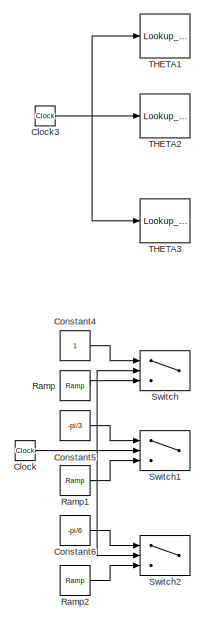
[diagram: root canvas - part 1/3, middle left region]
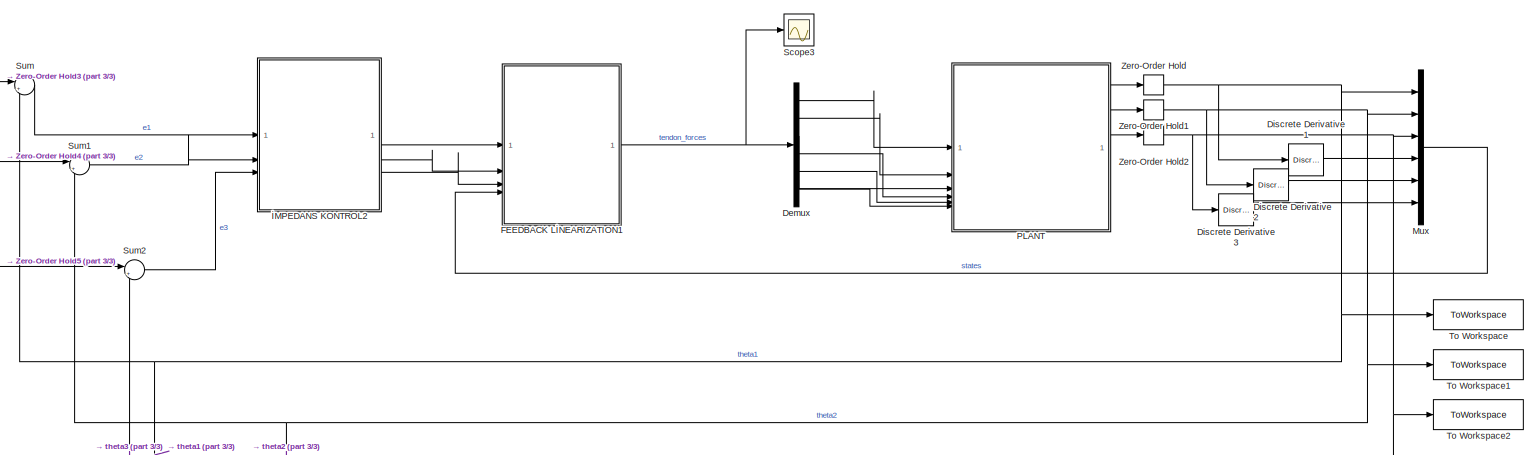
[diagram: root canvas - part 2/3, central region]
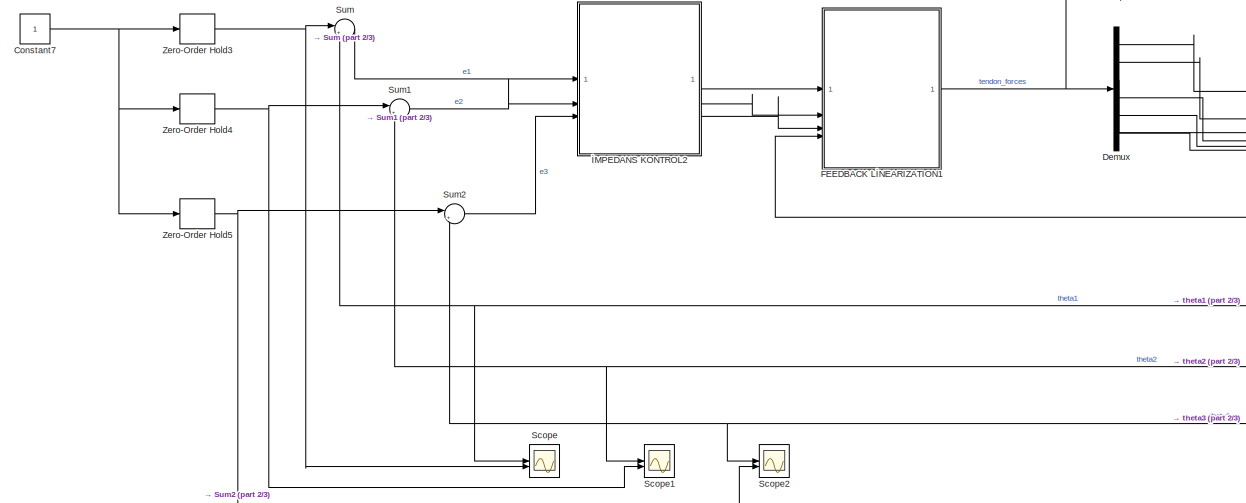
[diagram: root canvas - part 3/3, bottom center region]
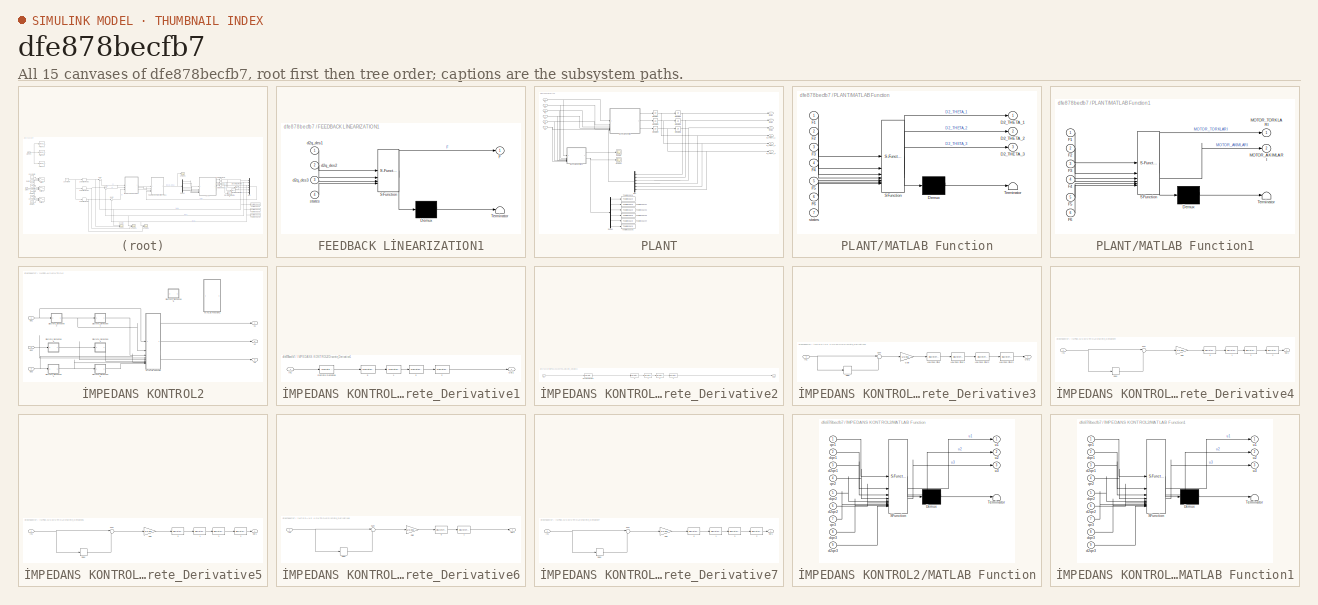
[diagram: thumbnail index - all 15 canvases of the model, root first then tree order]
MODEL slx_dfe878becfb7
KIND model
CONFIG AbsTol = auto
CONFIG EnableMultiTasking = off
CONFIG FixedStep = 0.001
CONFIG MaxStep = auto
CONFIG MinStep = auto
CONFIG RelTol = 1e-3
CONFIG SampleTimeConstraint = Unconstrained
CONFIG SolverName = FixedStepAuto
CONFIG StartTime = 0.0
CONFIG StopTime = 10
BLOCK [Clock] Clock
BLOCK [Clock] Clock3
BLOCK [Constant] Constant4
BLOCK [Constant] Constant5
  Value = -pi/3
BLOCK [Constant] Constant6
  Value = -pi/6
BLOCK [Constant] Constant7
  SampleTime = 0.001
BLOCK [Demux] Demux
  Outputs = 6
BLOCK [Reference] Discrete Derivative1  REF=simulink/Discrete/Discrete Derivative
  SourceBlock = simulink/Discrete/Discrete Derivative
  SourceType = Discrete Derivative
BLOCK [Reference] Discrete Derivative2  REF=simulink/Discrete/Discrete Derivative
  SourceBlock = simulink/Discrete/Discrete Derivative
  SourceType = Discrete Derivative
BLOCK [Reference] Discrete Derivative3  REF=simulink/Discrete/Discrete Derivative
  SourceBlock = simulink/Discrete/Discrete Derivative
  SourceType = Discrete Derivative
BLOCK [SubSystem] FEEDBACK LİNEARIZATION1
  ErrorFcn = Stateflow.Translate.translate
  PermitHierarchicalResolution = ExplicitOnly
  SFBlockType = MATLAB Function
  TreatAsAtomicUnit = on
BLOCK [Demux] FEEDBACK LİNEARIZATION1/ Demux 
  Outputs = 1
BLOCK [S-Function] FEEDBACK LİNEARIZATION1/ SFunction 
  EnableBusSupport = on
  FunctionName = sf_sfun
  PortCounts = [4 2]
  SFcnIsStateOwnerBlock = off
  SFunctionDeploymentMode = off
  Tag = Stateflow S-Function 3
BLOCK [Terminator] FEEDBACK LİNEARIZATION1/ Terminator 
BLOCK [Outport] FEEDBACK LİNEARIZATION1/F
BLOCK [Inport] FEEDBACK LİNEARIZATION1/d2q_des1
BLOCK [Inport] FEEDBACK LİNEARIZATION1/d2q_des2
  Port = 2
BLOCK [Inport] FEEDBACK LİNEARIZATION1/d2q_des3
  Port = 3
BLOCK [Inport] FEEDBACK LİNEARIZATION1/states
  Port = 4
BLOCK [Mux] Mux
  DisplayOption = bar
  Inputs = 6
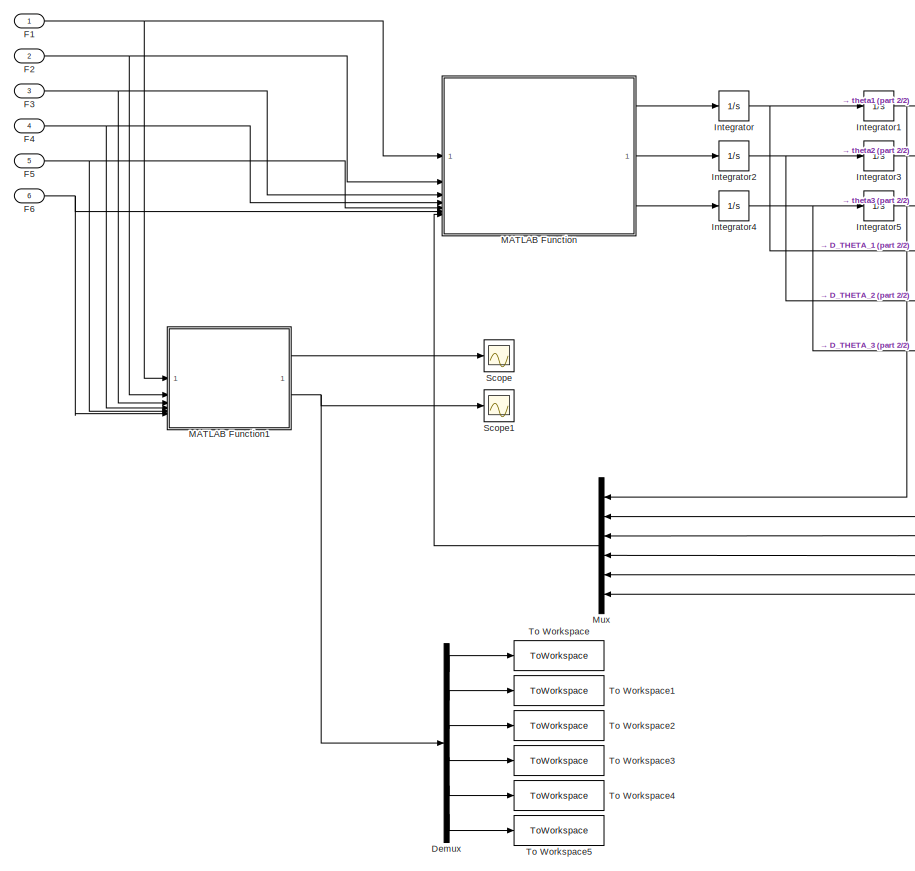
[diagram: PLANT - part 1/2, left side, full height]
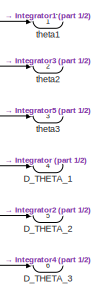
[diagram: PLANT - part 2/2, top right region]
BLOCK [SubSystem] PLANT
BLOCK [Outport] PLANT/D_THETA_1
  Port = 4
BLOCK [Outport] PLANT/D_THETA_2
  Port = 5
BLOCK [Outport] PLANT/D_THETA_3
  Port = 6
BLOCK [Demux] PLANT/Demux
  Outputs = 6
BLOCK [Inport] PLANT/F1
BLOCK [Inport] PLANT/F2
  Port = 2
BLOCK [Inport] PLANT/F3
  Port = 3
BLOCK [Inport] PLANT/F4
  Port = 4
BLOCK [Inport] PLANT/F5
  Port = 5
BLOCK [Inport] PLANT/F6
  Port = 6
BLOCK [Integrator] PLANT/Integrator
BLOCK [Integrator] PLANT/Integrator1
BLOCK [Integrator] PLANT/Integrator2
BLOCK [Integrator] PLANT/Integrator3
BLOCK [Integrator] PLANT/Integrator4
BLOCK [Integrator] PLANT/Integrator5
BLOCK [SubSystem] PLANT/MATLAB Function
  ErrorFcn = Stateflow.Translate.translate
  PermitHierarchicalResolution = ExplicitOnly
  SFBlockType = MATLAB Function
  TreatAsAtomicUnit = on
BLOCK [Demux] PLANT/MATLAB Function/ Demux 
  Outputs = 1
BLOCK [S-Function] PLANT/MATLAB Function/ SFunction 
  EnableBusSupport = on
  FunctionName = sf_sfun
  PortCounts = [7 4]
  SFcnIsStateOwnerBlock = off
  SFunctionDeploymentMode = off
  Tag = Stateflow S-Function 2
BLOCK [Terminator] PLANT/MATLAB Function/ Terminator 
BLOCK [Outport] PLANT/MATLAB Function/D2_THETA_1
BLOCK [Outport] PLANT/MATLAB Function/D2_THETA_2
  Port = 2
BLOCK [Outport] PLANT/MATLAB Function/D2_THETA_3
  Port = 3
BLOCK [Inport] PLANT/MATLAB Function/F1
BLOCK [Inport] PLANT/MATLAB Function/F2
  Port = 2
BLOCK [Inport] PLANT/MATLAB Function/F3
  Port = 3
BLOCK [Inport] PLANT/MATLAB Function/F4
  Port = 4
BLOCK [Inport] PLANT/MATLAB Function/F5
  Port = 5
BLOCK [Inport] PLANT/MATLAB Function/F6
  Port = 6
BLOCK [Inport] PLANT/MATLAB Function/states
  Port = 7
BLOCK [SubSystem] PLANT/MATLAB Function1
  ErrorFcn = Stateflow.Translate.translate
  PermitHierarchicalResolution = ExplicitOnly
  SFBlockType = MATLAB Function
  TreatAsAtomicUnit = on
BLOCK [Demux] PLANT/MATLAB Function1/ Demux 
  Outputs = 1
BLOCK [S-Function] PLANT/MATLAB Function1/ SFunction 
  EnableBusSupport = on
  FunctionName = sf_sfun
  PortCounts = [6 3]
  SFcnIsStateOwnerBlock = off
  SFunctionDeploymentMode = off
  Tag = Stateflow S-Function 1
BLOCK [Terminator] PLANT/MATLAB Function1/ Terminator 
BLOCK [Inport] PLANT/MATLAB Function1/F1
BLOCK [Inport] PLANT/MATLAB Function1/F2
  Port = 2
BLOCK [Inport] PLANT/MATLAB Function1/F3
  Port = 3
BLOCK [Inport] PLANT/MATLAB Function1/F4
  Port = 4
BLOCK [Inport] PLANT/MATLAB Function1/F5
  Port = 5
BLOCK [Inport] PLANT/MATLAB Function1/F6
  Port = 6
BLOCK [Outport] PLANT/MATLAB Function1/MOTOR_AKIMLARI
  Port = 2
BLOCK [Outport] PLANT/MATLAB Function1/MOTOR_TORKLARI
BLOCK [Mux] PLANT/Mux
  DisplayOption = bar
  Inputs = 6
  NameLocation = top
BLOCK [Scope] PLANT/Scope
  Floating = off
  NumInputPorts = 1
  ScopeSpecificationString = Simulink.scopes.TimeScopeBlockCfg('CurrentConfiguration', extmgr.ConfigurationSet(extmgr.Configuration('Core','General UI',true),extmgr.Configuration('Core','Source UI',true),extmgr.Configuration('Sources','WiredSimulink',true,'DataLoggingVariableName','ScopeData1'),extmgr.Configuration('Visuals','Time Domain',true,'SerializedDisplays',{struct('MinYLimReal','-0.0105','MaxYLimReal','0.09573','YLabe...<+1686ch>
BLOCK [Scope] PLANT/Scope1
  Floating = off
  NumInputPorts = 1
  ScopeSpecificationString = Simulink.scopes.TimeScopeBlockCfg('CurrentConfiguration', extmgr.ConfigurationSet(extmgr.Configuration('Core','General UI',true),extmgr.Configuration('Core','Source UI',true),extmgr.Configuration('Sources','WiredSimulink',true,'DataLoggingVariableName','ScopeData2'),extmgr.Configuration('Visuals','Time Domain',true,'SerializedDisplays',{struct('MinYLimReal','-0.01063','MaxYLimReal','0.09566','YLab...<+1732ch>
BLOCK [ToWorkspace] PLANT/To Workspace
  FixptAsFi = on
  MaxDataPoints = inf
  SampleTime = -1
  SaveFormat = Timeseries
  VariableName = m1
BLOCK [ToWorkspace] PLANT/To Workspace1
  FixptAsFi = on
  MaxDataPoints = inf
  SampleTime = -1
  SaveFormat = Timeseries
  VariableName = m2
BLOCK [ToWorkspace] PLANT/To Workspace2
  FixptAsFi = on
  MaxDataPoints = inf
  SampleTime = -1
  SaveFormat = Timeseries
  VariableName = m3
BLOCK [ToWorkspace] PLANT/To Workspace3
  FixptAsFi = on
  MaxDataPoints = inf
  SampleTime = -1
  SaveFormat = Timeseries
  VariableName = m4
BLOCK [ToWorkspace] PLANT/To Workspace4
  FixptAsFi = on
  MaxDataPoints = inf
  SampleTime = -1
  SaveFormat = Timeseries
  VariableName = m5
BLOCK [ToWorkspace] PLANT/To Workspace5
  FixptAsFi = on
  MaxDataPoints = inf
  SampleTime = -1
  SaveFormat = Timeseries
  VariableName = m6
BLOCK [Outport] PLANT/theta1
BLOCK [Outport] PLANT/theta2
  Port = 2
BLOCK [Outport] PLANT/theta3
  Port = 3
BLOCK [Reference] Ramp  REF=simulink/Sources/Ramp
  SourceBlock = simulink/Sources/Ramp
  SourceType = Ramp
BLOCK [Reference] Ramp1  REF=simulink/Sources/Ramp
  SourceBlock = simulink/Sources/Ramp
  SourceType = Ramp
BLOCK [Reference] Ramp2  REF=simulink/Sources/Ramp
  SourceBlock = simulink/Sources/Ramp
  SourceType = Ramp
BLOCK [Scope] Scope
  Floating = off
  NumInputPorts = 2
  ScopeSpecificationString = Simulink.scopes.TimeScopeBlockCfg('CurrentConfiguration', extmgr.ConfigurationSet(extmgr.Configuration('Core','General UI',true,'FigureColor',[0.831372549019608 0.815686274509804 0.784313725490196]),extmgr.Configuration('Core','Source UI',true),extmgr.Configuration('Sources','WiredSimulink',true,'DataLoggingVariableName','ScopeData1'),extmgr.Configuration('Visuals','Time Domain',true,'SerializedDi...<+1827ch>
BLOCK [Scope] Scope1
  Floating = off
  NumInputPorts = 2
  ScopeSpecificationString = Simulink.scopes.TimeScopeBlockCfg('CurrentConfiguration', extmgr.ConfigurationSet(extmgr.Configuration('Core','General UI',true),extmgr.Configuration('Core','Source UI',true),extmgr.Configuration('Sources','WiredSimulink',true,'DataLoggingVariableName','ScopeData2'),extmgr.Configuration('Visuals','Time Domain',true,'SerializedDisplays',{struct('MinYLimReal','-0.15205','MaxYLimReal','1.36845','YLab...<+1525ch>
BLOCK [Scope] Scope2
  Floating = off
  NumInputPorts = 2
  ScopeSpecificationString = Simulink.scopes.TimeScopeBlockCfg('CurrentConfiguration', extmgr.ConfigurationSet(extmgr.Configuration('Core','General UI',true),extmgr.Configuration('Core','Source UI',true),extmgr.Configuration('Sources','WiredSimulink',true,'DataLoggingVariableName','ScopeData3'),extmgr.Configuration('Visuals','Time Domain',true,'SerializedDisplays',{struct('MinYLimReal','-0.13963','MaxYLimReal','1.2567','YLabe...<+1496ch>
BLOCK [Scope] Scope3
  Floating = off
  NumInputPorts = 1
  ScopeSpecificationString = Simulink.scopes.TimeScopeBlockCfg('CurrentConfiguration', extmgr.ConfigurationSet(extmgr.Configuration('Core','General UI',true),extmgr.Configuration('Core','Source UI',true),extmgr.Configuration('Sources','WiredSimulink',true,'DataLoggingVariableName','ScopeData1'),extmgr.Configuration('Visuals','Time Domain',true,'SerializedDisplays',{struct('MinYLimReal','-3.69606','MaxYLimReal','33.26457','YLa...<+1584ch>
BLOCK [Sum] Sum
  Inputs = |+-
BLOCK [Sum] Sum1
  Inputs = |+-
BLOCK [Sum] Sum2
  Inputs = |+-
BLOCK [Switch] Switch
  Criteria = u2 > Threshold
  InputSameDT = off
  SaturateOnIntegerOverflow = off
  Threshold = 2
BLOCK [Switch] Switch1
  Criteria = u2 > Threshold
  InputSameDT = off
  SaturateOnIntegerOverflow = off
  Threshold = 1
BLOCK [Switch] Switch2
  Criteria = u2 > Threshold
  InputSameDT = off
  SaturateOnIntegerOverflow = off
  Threshold = 1
BLOCK [Lookup_n-D] THETA1
  BreakpointsForDimension1 = [0:0.01209:10]
  InputPortMap = u0
  InternalRulePriority = Speed
  NumberOfTableDimensions = 1
  RndMeth = Simplest
  Table = [3.6739403974420595e-17  0.0018373747386941153  0.031104117726482236  0.018742775985835458  0.03582520263747096  0.04592374641467687  0.052359865334245005  0.024058789434421298  0.0371846744639253  0.03766299609142134  0.04053395039223553  0.05419725229851646  0.03858245137367349  0.06940555854089034  0.07349874804657569  0.06036247150750728  0.05603574389361684  0.060203800337469145  0.0574270776...<+16163ch>
BLOCK [Lookup_n-D] THETA2
  BreakpointsForDimension1 = [0:0.01209:10]
  InputPortMap = u0
  InternalRulePriority = Speed
  NumberOfTableDimensions = 1
  RndMeth = Simplest
  Table = [0.0  0.03490658503988885  -0.033284041948025575  0.024108973093034097  0.017453292519947913  0.010897133595376871  2.580956827951785e-08  0.05801510497744568  0.04868897935829344  0.05235987755982642  0.060690073963622776  0.03490658503990476  0.06981317007977231  0.024238413989330437  0.014730566219418576  0.05579073535311509  0.06981317007977231  0.06823361310456687  0.08130478950558964  0.0281...<+17431ch>
BLOCK [Lookup_n-D] THETA3
  BreakpointsForDimension1 = [0:0.01209:10]
  InputPortMap = u0
  InternalRulePriority = Speed
  NumberOfTableDimensions = 1
  RndMeth = Simplest
  Table = [1.4901161157108252e-08  -0.08910383733841787  -0.0327266608183487  -0.12139156541861737  -0.17545154279702416  -0.19644722016959976  -0.19198623130335932  -0.21297358831144533  -0.2429532865017081  -0.2471025063307386  -0.27575694955529145  -0.2636367625378544  -0.282928546652879  -0.29435683650957045  -0.2802155319853704  -0.32559271709994325  -0.3352884242127084  -0.34660356994132824  -0.365624...<+16824ch>
BLOCK [ToWorkspace] To Workspace
  FixptAsFi = on
  MaxDataPoints = inf
  SampleTime = -1
  SaveFormat = Timeseries
  VariableName = theta1
BLOCK [ToWorkspace] To Workspace1
  FixptAsFi = on
  MaxDataPoints = inf
  SampleTime = -1
  SaveFormat = Timeseries
  VariableName = theta2
BLOCK [ToWorkspace] To Workspace2
  FixptAsFi = on
  MaxDataPoints = inf
  SampleTime = -1
  SaveFormat = Timeseries
  VariableName = theta3
BLOCK [ZeroOrderHold] Zero-Order Hold
  SampleTime = 0.001
BLOCK [ZeroOrderHold] Zero-Order Hold1
  SampleTime = 0.001
BLOCK [ZeroOrderHold] Zero-Order Hold2
  SampleTime = 0.001
BLOCK [ZeroOrderHold] Zero-Order Hold3
  SampleTime = 0.001
BLOCK [ZeroOrderHold] Zero-Order Hold4
  SampleTime = 0.001
BLOCK [ZeroOrderHold] Zero-Order Hold5
  SampleTime = 0.001
BLOCK [SubSystem] İMPEDANS KONTROL2
BLOCK [SubSystem] İMPEDANS KONTROL2/Discrete_Derivative1
BLOCK [DiscreteTransferFcn] İMPEDANS KONTROL2/Discrete_Derivative1/1
  CloseFcn = dspblkCoreblockFVToolHelper(gcbh,'close');
  CopyFcn = dspblkCoreblockFVToolHelper(gcbh,'copy');
  DeleteFcn = dspblkCoreblockFVToolHelper(gcbh,'close');
  Denominator = [1 -0.9412]
  InputPortMap = u0
  LoadFcn = dspblkCoreblockFVToolHelper(gcbh,'load');
  ModelCloseFcn = dspblkCoreblockFVToolHelper(gcbh,'close');
  NameLocation = top
  Numerator = [0.0588]
  PostSaveFcn = dspblkCoreblockFVToolHelper(gcbh,'postsave');
  PreSaveFcn = dspblkCoreblockFVToolHelper(gcbh,'presave');
BLOCK [DiscreteTransferFcn] İMPEDANS KONTROL2/Discrete_Derivative1/2
  CloseFcn = dspblkCoreblockFVToolHelper(gcbh,'close');
  CopyFcn = dspblkCoreblockFVToolHelper(gcbh,'copy');
  DeleteFcn = dspblkCoreblockFVToolHelper(gcbh,'close');
  Denominator = [1 -0.9412]
  InputPortMap = u0
  LoadFcn = dspblkCoreblockFVToolHelper(gcbh,'load');
  ModelCloseFcn = dspblkCoreblockFVToolHelper(gcbh,'close');
  NameLocation = top
  Numerator = [0.0588]
  PostSaveFcn = dspblkCoreblockFVToolHelper(gcbh,'postsave');
  PreSaveFcn = dspblkCoreblockFVToolHelper(gcbh,'presave');
BLOCK [DiscreteTransferFcn] İMPEDANS KONTROL2/Discrete_Derivative1/3
  CloseFcn = dspblkCoreblockFVToolHelper(gcbh,'close');
  CopyFcn = dspblkCoreblockFVToolHelper(gcbh,'copy');
  DeleteFcn = dspblkCoreblockFVToolHelper(gcbh,'close');
  Denominator = [1 -0.9412]
  InputPortMap = u0
  LoadFcn = dspblkCoreblockFVToolHelper(gcbh,'load');
  ModelCloseFcn = dspblkCoreblockFVToolHelper(gcbh,'close');
  NameLocation = top
  Numerator = [0.0588]
  PostSaveFcn = dspblkCoreblockFVToolHelper(gcbh,'postsave');
  PreSaveFcn = dspblkCoreblockFVToolHelper(gcbh,'presave');
BLOCK [DiscreteTransferFcn] İMPEDANS KONTROL2/Discrete_Derivative1/5
  CloseFcn = dspblkCoreblockFVToolHelper(gcbh,'close');
  CopyFcn = dspblkCoreblockFVToolHelper(gcbh,'copy');
  DeleteFcn = dspblkCoreblockFVToolHelper(gcbh,'close');
  Denominator = [1 -0.9412]
  InputPortMap = u0
  LoadFcn = dspblkCoreblockFVToolHelper(gcbh,'load');
  ModelCloseFcn = dspblkCoreblockFVToolHelper(gcbh,'close');
  NameLocation = top
  Numerator = [0.0588]
  PostSaveFcn = dspblkCoreblockFVToolHelper(gcbh,'postsave');
  PreSaveFcn = dspblkCoreblockFVToolHelper(gcbh,'presave');
BLOCK [Reference] İMPEDANS KONTROL2/Discrete_Derivative1/Discrete Derivative  REF=simulink/Discrete/Discrete Derivative
  SourceBlock = simulink/Discrete/Discrete Derivative
  SourceType = Discrete Derivative
BLOCK [Inport] İMPEDANS KONTROL2/Discrete_Derivative1/In1
BLOCK [Outport] İMPEDANS KONTROL2/Discrete_Derivative1/Out1
BLOCK [SubSystem] İMPEDANS KONTROL2/Discrete_Derivative2
BLOCK [DiscreteTransferFcn] İMPEDANS KONTROL2/Discrete_Derivative2/1
  CloseFcn = dspblkCoreblockFVToolHelper(gcbh,'close');
  CopyFcn = dspblkCoreblockFVToolHelper(gcbh,'copy');
  DeleteFcn = dspblkCoreblockFVToolHelper(gcbh,'close');
  Denominator = [1 -0.9412]
  InputPortMap = u0
  LoadFcn = dspblkCoreblockFVToolHelper(gcbh,'load');
  ModelCloseFcn = dspblkCoreblockFVToolHelper(gcbh,'close');
  NameLocation = top
  Numerator = [0.0588]
  PostSaveFcn = dspblkCoreblockFVToolHelper(gcbh,'postsave');
  PreSaveFcn = dspblkCoreblockFVToolHelper(gcbh,'presave');
BLOCK [DiscreteTransferFcn] İMPEDANS KONTROL2/Discrete_Derivative2/2
  CloseFcn = dspblkCoreblockFVToolHelper(gcbh,'close');
  CopyFcn = dspblkCoreblockFVToolHelper(gcbh,'copy');
  DeleteFcn = dspblkCoreblockFVToolHelper(gcbh,'close');
  Denominator = [1 -0.9412]
  InputPortMap = u0
  LoadFcn = dspblkCoreblockFVToolHelper(gcbh,'load');
  ModelCloseFcn = dspblkCoreblockFVToolHelper(gcbh,'close');
  NameLocation = top
  Numerator = [0.0588]
  PostSaveFcn = dspblkCoreblockFVToolHelper(gcbh,'postsave');
  PreSaveFcn = dspblkCoreblockFVToolHelper(gcbh,'presave');
BLOCK [DiscreteTransferFcn] İMPEDANS KONTROL2/Discrete_Derivative2/3
  CloseFcn = dspblkCoreblockFVToolHelper(gcbh,'close');
  CopyFcn = dspblkCoreblockFVToolHelper(gcbh,'copy');
  DeleteFcn = dspblkCoreblockFVToolHelper(gcbh,'close');
  Denominator = [1 -0.9412]
  InputPortMap = u0
  LoadFcn = dspblkCoreblockFVToolHelper(gcbh,'load');
  ModelCloseFcn = dspblkCoreblockFVToolHelper(gcbh,'close');
  NameLocation = top
  Numerator = [0.0588]
  PostSaveFcn = dspblkCoreblockFVToolHelper(gcbh,'postsave');
  PreSaveFcn = dspblkCoreblockFVToolHelper(gcbh,'presave');
BLOCK [DiscreteTransferFcn] İMPEDANS KONTROL2/Discrete_Derivative2/5
  CloseFcn = dspblkCoreblockFVToolHelper(gcbh,'close');
  CopyFcn = dspblkCoreblockFVToolHelper(gcbh,'copy');
  DeleteFcn = dspblkCoreblockFVToolHelper(gcbh,'close');
  Denominator = [1 -0.9412]
  InputPortMap = u0
  LoadFcn = dspblkCoreblockFVToolHelper(gcbh,'load');
  ModelCloseFcn = dspblkCoreblockFVToolHelper(gcbh,'close');
  NameLocation = top
  Numerator = [0.0588]
  PostSaveFcn = dspblkCoreblockFVToolHelper(gcbh,'postsave');
  PreSaveFcn = dspblkCoreblockFVToolHelper(gcbh,'presave');
BLOCK [Reference] İMPEDANS KONTROL2/Discrete_Derivative2/Discrete Derivative  REF=simulink/Discrete/Discrete Derivative
  SourceBlock = simulink/Discrete/Discrete Derivative
  SourceType = Discrete Derivative
BLOCK [Inport] İMPEDANS KONTROL2/Discrete_Derivative2/In1
BLOCK [Outport] İMPEDANS KONTROL2/Discrete_Derivative2/Out1
BLOCK [SubSystem] İMPEDANS KONTROL2/Discrete_Derivative3
BLOCK [Delay] İMPEDANS KONTROL2/Discrete_Derivative3/Delay
  DelayLength = 1
  InputPortMap = u0
  InputProcessing = Columns as channels (frame based)
  SampleTime = 0.001
BLOCK [Gain] İMPEDANS KONTROL2/Discrete_Derivative3/Gain
  Gain = 1/0.001
BLOCK [Inport] İMPEDANS KONTROL2/Discrete_Derivative3/In1
BLOCK [DiscreteTransferFcn] İMPEDANS KONTROL2/Discrete_Derivative3/Low Pass Filter
  CloseFcn = dspblkCoreblockFVToolHelper(gcbh,'close');
  CopyFcn = dspblkCoreblockFVToolHelper(gcbh,'copy');
  DeleteFcn = dspblkCoreblockFVToolHelper(gcbh,'close');
  Denominator = [1 -0.9412]
  InputPortMap = u0
  LoadFcn = dspblkCoreblockFVToolHelper(gcbh,'load');
  ModelCloseFcn = dspblkCoreblockFVToolHelper(gcbh,'close');
  NameLocation = top
  Numerator = [0.0588]
  PostSaveFcn = dspblkCoreblockFVToolHelper(gcbh,'postsave');
  PreSaveFcn = dspblkCoreblockFVToolHelper(gcbh,'presave');
BLOCK [DiscreteTransferFcn] İMPEDANS KONTROL2/Discrete_Derivative3/Low Pass Filter1
  CloseFcn = dspblkCoreblockFVToolHelper(gcbh,'close');
  CopyFcn = dspblkCoreblockFVToolHelper(gcbh,'copy');
  DeleteFcn = dspblkCoreblockFVToolHelper(gcbh,'close');
  Denominator = [1 -0.9412]
  InputPortMap = u0
  LoadFcn = dspblkCoreblockFVToolHelper(gcbh,'load');
  ModelCloseFcn = dspblkCoreblockFVToolHelper(gcbh,'close');
  NameLocation = top
  Numerator = [0.0588]
  PostSaveFcn = dspblkCoreblockFVToolHelper(gcbh,'postsave');
  PreSaveFcn = dspblkCoreblockFVToolHelper(gcbh,'presave');
BLOCK [DiscreteTransferFcn] İMPEDANS KONTROL2/Discrete_Derivative3/Low Pass Filter2
  CloseFcn = dspblkCoreblockFVToolHelper(gcbh,'close');
  CopyFcn = dspblkCoreblockFVToolHelper(gcbh,'copy');
  DeleteFcn = dspblkCoreblockFVToolHelper(gcbh,'close');
  Denominator = [1 -0.9412]
  InputPortMap = u0
  LoadFcn = dspblkCoreblockFVToolHelper(gcbh,'load');
  ModelCloseFcn = dspblkCoreblockFVToolHelper(gcbh,'close');
  NameLocation = top
  Numerator = [0.0588]
  PostSaveFcn = dspblkCoreblockFVToolHelper(gcbh,'postsave');
  PreSaveFcn = dspblkCoreblockFVToolHelper(gcbh,'presave');
BLOCK [DiscreteTransferFcn] İMPEDANS KONTROL2/Discrete_Derivative3/Low Pass Filter3
  CloseFcn = dspblkCoreblockFVToolHelper(gcbh,'close');
  CopyFcn = dspblkCoreblockFVToolHelper(gcbh,'copy');
  DeleteFcn = dspblkCoreblockFVToolHelper(gcbh,'close');
  Denominator = [1 -0.9412]
  InputPortMap = u0
  LoadFcn = dspblkCoreblockFVToolHelper(gcbh,'load');
  ModelCloseFcn = dspblkCoreblockFVToolHelper(gcbh,'close');
  NameLocation = top
  Numerator = [0.0588]
  PostSaveFcn = dspblkCoreblockFVToolHelper(gcbh,'postsave');
  PreSaveFcn = dspblkCoreblockFVToolHelper(gcbh,'presave');
BLOCK [Outport] İMPEDANS KONTROL2/Discrete_Derivative3/Out1
BLOCK [Sum] İMPEDANS KONTROL2/Discrete_Derivative3/Sum
  Inputs = |+-
BLOCK [SubSystem] İMPEDANS KONTROL2/Discrete_Derivative4
BLOCK [DiscreteTransferFcn] İMPEDANS KONTROL2/Discrete_Derivative4/1
  CloseFcn = dspblkCoreblockFVToolHelper(gcbh,'close');
  CopyFcn = dspblkCoreblockFVToolHelper(gcbh,'copy');
  DeleteFcn = dspblkCoreblockFVToolHelper(gcbh,'close');
  Denominator = [1 -0.9412]
  InputPortMap = u0
  LoadFcn = dspblkCoreblockFVToolHelper(gcbh,'load');
  ModelCloseFcn = dspblkCoreblockFVToolHelper(gcbh,'close');
  NameLocation = top
  Numerator = [0.0588]
  PostSaveFcn = dspblkCoreblockFVToolHelper(gcbh,'postsave');
  PreSaveFcn = dspblkCoreblockFVToolHelper(gcbh,'presave');
BLOCK [DiscreteTransferFcn] İMPEDANS KONTROL2/Discrete_Derivative4/2
  CloseFcn = dspblkCoreblockFVToolHelper(gcbh,'close');
  CopyFcn = dspblkCoreblockFVToolHelper(gcbh,'copy');
  DeleteFcn = dspblkCoreblockFVToolHelper(gcbh,'close');
  Denominator = [1 -0.9412]
  InputPortMap = u0
  LoadFcn = dspblkCoreblockFVToolHelper(gcbh,'load');
  ModelCloseFcn = dspblkCoreblockFVToolHelper(gcbh,'close');
  NameLocation = top
  Numerator = [0.0588]
  PostSaveFcn = dspblkCoreblockFVToolHelper(gcbh,'postsave');
  PreSaveFcn = dspblkCoreblockFVToolHelper(gcbh,'presave');
BLOCK [DiscreteTransferFcn] İMPEDANS KONTROL2/Discrete_Derivative4/3
  CloseFcn = dspblkCoreblockFVToolHelper(gcbh,'close');
  CopyFcn = dspblkCoreblockFVToolHelper(gcbh,'copy');
  DeleteFcn = dspblkCoreblockFVToolHelper(gcbh,'close');
  Denominator = [1 -0.9412]
  InputPortMap = u0
  LoadFcn = dspblkCoreblockFVToolHelper(gcbh,'load');
  ModelCloseFcn = dspblkCoreblockFVToolHelper(gcbh,'close');
  NameLocation = top
  Numerator = [0.0588]
  PostSaveFcn = dspblkCoreblockFVToolHelper(gcbh,'postsave');
  PreSaveFcn = dspblkCoreblockFVToolHelper(gcbh,'presave');
BLOCK [DiscreteTransferFcn] İMPEDANS KONTROL2/Discrete_Derivative4/5
  CloseFcn = dspblkCoreblockFVToolHelper(gcbh,'close');
  CopyFcn = dspblkCoreblockFVToolHelper(gcbh,'copy');
  DeleteFcn = dspblkCoreblockFVToolHelper(gcbh,'close');
  Denominator = [1 -0.9412]
  InputPortMap = u0
  LoadFcn = dspblkCoreblockFVToolHelper(gcbh,'load');
  ModelCloseFcn = dspblkCoreblockFVToolHelper(gcbh,'close');
  NameLocation = top
  Numerator = [0.0588]
  PostSaveFcn = dspblkCoreblockFVToolHelper(gcbh,'postsave');
  PreSaveFcn = dspblkCoreblockFVToolHelper(gcbh,'presave');
BLOCK [Delay] İMPEDANS KONTROL2/Discrete_Derivative4/Delay
  DelayLength = 1
  InputPortMap = u0
  InputProcessing = Columns as channels (frame based)
  SampleTime = 0.001
BLOCK [Gain] İMPEDANS KONTROL2/Discrete_Derivative4/Gain
  Gain = 1/0.001
BLOCK [Inport] İMPEDANS KONTROL2/Discrete_Derivative4/In1
BLOCK [Outport] İMPEDANS KONTROL2/Discrete_Derivative4/Out1
BLOCK [Sum] İMPEDANS KONTROL2/Discrete_Derivative4/Sum
  Inputs = |+-
BLOCK [SubSystem] İMPEDANS KONTROL2/Discrete_Derivative5
BLOCK [DiscreteTransferFcn] İMPEDANS KONTROL2/Discrete_Derivative5/1
  CloseFcn = dspblkCoreblockFVToolHelper(gcbh,'close');
  CopyFcn = dspblkCoreblockFVToolHelper(gcbh,'copy');
  DeleteFcn = dspblkCoreblockFVToolHelper(gcbh,'close');
  Denominator = [1 -0.9412]
  InputPortMap = u0
  LoadFcn = dspblkCoreblockFVToolHelper(gcbh,'load');
  ModelCloseFcn = dspblkCoreblockFVToolHelper(gcbh,'close');
  NameLocation = top
  Numerator = [0.0588]
  PostSaveFcn = dspblkCoreblockFVToolHelper(gcbh,'postsave');
  PreSaveFcn = dspblkCoreblockFVToolHelper(gcbh,'presave');
BLOCK [DiscreteTransferFcn] İMPEDANS KONTROL2/Discrete_Derivative5/2
  CloseFcn = dspblkCoreblockFVToolHelper(gcbh,'close');
  CopyFcn = dspblkCoreblockFVToolHelper(gcbh,'copy');
  DeleteFcn = dspblkCoreblockFVToolHelper(gcbh,'close');
  Denominator = [1 -0.9412]
  InputPortMap = u0
  LoadFcn = dspblkCoreblockFVToolHelper(gcbh,'load');
  ModelCloseFcn = dspblkCoreblockFVToolHelper(gcbh,'close');
  NameLocation = top
  Numerator = [0.0588]
  PostSaveFcn = dspblkCoreblockFVToolHelper(gcbh,'postsave');
  PreSaveFcn = dspblkCoreblockFVToolHelper(gcbh,'presave');
BLOCK [DiscreteTransferFcn] İMPEDANS KONTROL2/Discrete_Derivative5/3
  CloseFcn = dspblkCoreblockFVToolHelper(gcbh,'close');
  CopyFcn = dspblkCoreblockFVToolHelper(gcbh,'copy');
  DeleteFcn = dspblkCoreblockFVToolHelper(gcbh,'close');
  Denominator = [1 -0.9412]
  InputPortMap = u0
  LoadFcn = dspblkCoreblockFVToolHelper(gcbh,'load');
  ModelCloseFcn = dspblkCoreblockFVToolHelper(gcbh,'close');
  NameLocation = top
  Numerator = [0.0588]
  PostSaveFcn = dspblkCoreblockFVToolHelper(gcbh,'postsave');
  PreSaveFcn = dspblkCoreblockFVToolHelper(gcbh,'presave');
BLOCK [DiscreteTransferFcn] İMPEDANS KONTROL2/Discrete_Derivative5/5
  CloseFcn = dspblkCoreblockFVToolHelper(gcbh,'close');
  CopyFcn = dspblkCoreblockFVToolHelper(gcbh,'copy');
  DeleteFcn = dspblkCoreblockFVToolHelper(gcbh,'close');
  Denominator = [1 -0.9412]
  InputPortMap = u0
  LoadFcn = dspblkCoreblockFVToolHelper(gcbh,'load');
  ModelCloseFcn = dspblkCoreblockFVToolHelper(gcbh,'close');
  NameLocation = top
  Numerator = [0.0588]
  PostSaveFcn = dspblkCoreblockFVToolHelper(gcbh,'postsave');
  PreSaveFcn = dspblkCoreblockFVToolHelper(gcbh,'presave');
BLOCK [Delay] İMPEDANS KONTROL2/Discrete_Derivative5/Delay
  DelayLength = 1
  InputPortMap = u0
  InputProcessing = Columns as channels (frame based)
  SampleTime = 0.001
BLOCK [Gain] İMPEDANS KONTROL2/Discrete_Derivative5/Gain
  Gain = 1/0.001
BLOCK [Inport] İMPEDANS KONTROL2/Discrete_Derivative5/In1
BLOCK [Outport] İMPEDANS KONTROL2/Discrete_Derivative5/Out1
BLOCK [Sum] İMPEDANS KONTROL2/Discrete_Derivative5/Sum
  Inputs = |+-
BLOCK [SubSystem] İMPEDANS KONTROL2/Discrete_Derivative6
BLOCK [DiscreteTransferFcn] İMPEDANS KONTROL2/Discrete_Derivative6/1
  CloseFcn = dspblkCoreblockFVToolHelper(gcbh,'close');
  CopyFcn = dspblkCoreblockFVToolHelper(gcbh,'copy');
  DeleteFcn = dspblkCoreblockFVToolHelper(gcbh,'close');
  Denominator = [1 -0.9412]
  InputPortMap = u0
  LoadFcn = dspblkCoreblockFVToolHelper(gcbh,'load');
  ModelCloseFcn = dspblkCoreblockFVToolHelper(gcbh,'close');
  NameLocation = top
  Numerator = [0.0588]
  PostSaveFcn = dspblkCoreblockFVToolHelper(gcbh,'postsave');
  PreSaveFcn = dspblkCoreblockFVToolHelper(gcbh,'presave');
BLOCK [DiscreteTransferFcn] İMPEDANS KONTROL2/Discrete_Derivative6/5
  CloseFcn = dspblkCoreblockFVToolHelper(gcbh,'close');
  CopyFcn = dspblkCoreblockFVToolHelper(gcbh,'copy');
  DeleteFcn = dspblkCoreblockFVToolHelper(gcbh,'close');
  Denominator = [1 -0.9412]
  InputPortMap = u0
  LoadFcn = dspblkCoreblockFVToolHelper(gcbh,'load');
  ModelCloseFcn = dspblkCoreblockFVToolHelper(gcbh,'close');
  NameLocation = top
  Numerator = [0.0588]
  PostSaveFcn = dspblkCoreblockFVToolHelper(gcbh,'postsave');
  PreSaveFcn = dspblkCoreblockFVToolHelper(gcbh,'presave');
BLOCK [Delay] İMPEDANS KONTROL2/Discrete_Derivative6/Delay
  DelayLength = 1
  InputPortMap = u0
  InputProcessing = Columns as channels (frame based)
  SampleTime = 0.001
BLOCK [Gain] İMPEDANS KONTROL2/Discrete_Derivative6/Gain
  Gain = 1/0.001
BLOCK [Inport] İMPEDANS KONTROL2/Discrete_Derivative6/In1
BLOCK [Outport] İMPEDANS KONTROL2/Discrete_Derivative6/Out1
BLOCK [Sum] İMPEDANS KONTROL2/Discrete_Derivative6/Sum
  Inputs = |+-
BLOCK [SubSystem] İMPEDANS KONTROL2/Discrete_Derivative7
BLOCK [DiscreteTransferFcn] İMPEDANS KONTROL2/Discrete_Derivative7/1
  CloseFcn = dspblkCoreblockFVToolHelper(gcbh,'close');
  CopyFcn = dspblkCoreblockFVToolHelper(gcbh,'copy');
  DeleteFcn = dspblkCoreblockFVToolHelper(gcbh,'close');
  Denominator = [1 -0.9412]
  InputPortMap = u0
  LoadFcn = dspblkCoreblockFVToolHelper(gcbh,'load');
  ModelCloseFcn = dspblkCoreblockFVToolHelper(gcbh,'close');
  NameLocation = top
  Numerator = [0.0588]
  PostSaveFcn = dspblkCoreblockFVToolHelper(gcbh,'postsave');
  PreSaveFcn = dspblkCoreblockFVToolHelper(gcbh,'presave');
BLOCK [DiscreteTransferFcn] İMPEDANS KONTROL2/Discrete_Derivative7/2
  CloseFcn = dspblkCoreblockFVToolHelper(gcbh,'close');
  CopyFcn = dspblkCoreblockFVToolHelper(gcbh,'copy');
  DeleteFcn = dspblkCoreblockFVToolHelper(gcbh,'close');
  Denominator = [1 -0.9412]
  InputPortMap = u0
  LoadFcn = dspblkCoreblockFVToolHelper(gcbh,'load');
  ModelCloseFcn = dspblkCoreblockFVToolHelper(gcbh,'close');
  NameLocation = top
  Numerator = [0.0588]
  PostSaveFcn = dspblkCoreblockFVToolHelper(gcbh,'postsave');
  PreSaveFcn = dspblkCoreblockFVToolHelper(gcbh,'presave');
BLOCK [DiscreteTransferFcn] İMPEDANS KONTROL2/Discrete_Derivative7/3
  CloseFcn = dspblkCoreblockFVToolHelper(gcbh,'close');
  CopyFcn = dspblkCoreblockFVToolHelper(gcbh,'copy');
  DeleteFcn = dspblkCoreblockFVToolHelper(gcbh,'close');
  Denominator = [1 -0.9412]
  InputPortMap = u0
  LoadFcn = dspblkCoreblockFVToolHelper(gcbh,'load');
  ModelCloseFcn = dspblkCoreblockFVToolHelper(gcbh,'close');
  NameLocation = top
  Numerator = [0.0588]
  PostSaveFcn = dspblkCoreblockFVToolHelper(gcbh,'postsave');
  PreSaveFcn = dspblkCoreblockFVToolHelper(gcbh,'presave');
BLOCK [DiscreteTransferFcn] İMPEDANS KONTROL2/Discrete_Derivative7/5
  CloseFcn = dspblkCoreblockFVToolHelper(gcbh,'close');
  CopyFcn = dspblkCoreblockFVToolHelper(gcbh,'copy');
  DeleteFcn = dspblkCoreblockFVToolHelper(gcbh,'close');
  Denominator = [1 -0.9412]
  InputPortMap = u0
  LoadFcn = dspblkCoreblockFVToolHelper(gcbh,'load');
  ModelCloseFcn = dspblkCoreblockFVToolHelper(gcbh,'close');
  NameLocation = top
  Numerator = [0.0588]
  PostSaveFcn = dspblkCoreblockFVToolHelper(gcbh,'postsave');
  PreSaveFcn = dspblkCoreblockFVToolHelper(gcbh,'presave');
BLOCK [Delay] İMPEDANS KONTROL2/Discrete_Derivative7/Delay
  DelayLength = 1
  InputPortMap = u0
  InputProcessing = Columns as channels (frame based)
  SampleTime = 0.001
BLOCK [Gain] İMPEDANS KONTROL2/Discrete_Derivative7/Gain
  Gain = 1/0.001
BLOCK [Inport] İMPEDANS KONTROL2/Discrete_Derivative7/In1
BLOCK [Outport] İMPEDANS KONTROL2/Discrete_Derivative7/Out1
BLOCK [Sum] İMPEDANS KONTROL2/Discrete_Derivative7/Sum
  Inputs = |+-
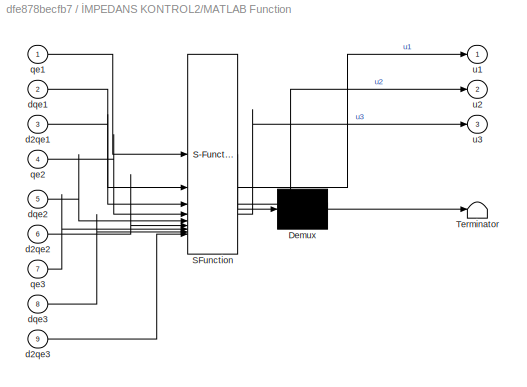
BLOCK [SubSystem] İMPEDANS KONTROL2/MATLAB Function
  ErrorFcn = Stateflow.Translate.translate
  PermitHierarchicalResolution = ExplicitOnly
  SFBlockType = MATLAB Function
  TreatAsAtomicUnit = on
BLOCK [Demux] İMPEDANS KONTROL2/MATLAB Function/ Demux 
  Outputs = 1
BLOCK [S-Function] İMPEDANS KONTROL2/MATLAB Function/ SFunction 
  EnableBusSupport = on
  FunctionName = sf_sfun
  PortCounts = [9 4]
  SFcnIsStateOwnerBlock = off
  SFunctionDeploymentMode = off
  Tag = Stateflow S-Function 5
BLOCK [Terminator] İMPEDANS KONTROL2/MATLAB Function/ Terminator 
BLOCK [Inport] İMPEDANS KONTROL2/MATLAB Function/d2qe1
  Port = 3
BLOCK [Inport] İMPEDANS KONTROL2/MATLAB Function/d2qe2
  Port = 6
BLOCK [Inport] İMPEDANS KONTROL2/MATLAB Function/d2qe3
  Port = 9
BLOCK [Inport] İMPEDANS KONTROL2/MATLAB Function/dqe1
  Port = 2
BLOCK [Inport] İMPEDANS KONTROL2/MATLAB Function/dqe2
  Port = 5
BLOCK [Inport] İMPEDANS KONTROL2/MATLAB Function/dqe3
  Port = 8
BLOCK [Inport] İMPEDANS KONTROL2/MATLAB Function/qe1
BLOCK [Inport] İMPEDANS KONTROL2/MATLAB Function/qe2
  Port = 4
BLOCK [Inport] İMPEDANS KONTROL2/MATLAB Function/qe3
  Port = 7
BLOCK [Outport] İMPEDANS KONTROL2/MATLAB Function/u1
BLOCK [Outport] İMPEDANS KONTROL2/MATLAB Function/u2
  Port = 2
BLOCK [Outport] İMPEDANS KONTROL2/MATLAB Function/u3
  Port = 3
BLOCK [SubSystem] İMPEDANS KONTROL2/MATLAB Function1
  ErrorFcn = Stateflow.Translate.translate
  PermitHierarchicalResolution = ExplicitOnly
  SFBlockType = MATLAB Function
  TreatAsAtomicUnit = on
BLOCK [Demux] İMPEDANS KONTROL2/MATLAB Function1/ Demux 
  Outputs = 1
BLOCK [S-Function] İMPEDANS KONTROL2/MATLAB Function1/ SFunction 
  EnableBusSupport = on
  FunctionName = sf_sfun
  PortCounts = [9 4]
  SFcnIsStateOwnerBlock = off
  SFunctionDeploymentMode = off
  Tag = Stateflow S-Function 6
BLOCK [Terminator] İMPEDANS KONTROL2/MATLAB Function1/ Terminator 
BLOCK [Inport] İMPEDANS KONTROL2/MATLAB Function1/d2qe1
  Port = 3
BLOCK [Inport] İMPEDANS KONTROL2/MATLAB Function1/d2qe2
  Port = 6
BLOCK [Inport] İMPEDANS KONTROL2/MATLAB Function1/d2qe3
  Port = 9
BLOCK [Inport] İMPEDANS KONTROL2/MATLAB Function1/dqe1
  Port = 2
BLOCK [Inport] İMPEDANS KONTROL2/MATLAB Function1/dqe2
  Port = 5
BLOCK [Inport] İMPEDANS KONTROL2/MATLAB Function1/dqe3
  Port = 8
BLOCK [Inport] İMPEDANS KONTROL2/MATLAB Function1/qe1
BLOCK [Inport] İMPEDANS KONTROL2/MATLAB Function1/qe2
  Port = 4
BLOCK [Inport] İMPEDANS KONTROL2/MATLAB Function1/qe3
  Port = 7
BLOCK [Outport] İMPEDANS KONTROL2/MATLAB Function1/u1
BLOCK [Outport] İMPEDANS KONTROL2/MATLAB Function1/u2
  Port = 2
BLOCK [Outport] İMPEDANS KONTROL2/MATLAB Function1/u3
  Port = 3
BLOCK [Inport] İMPEDANS KONTROL2/qe1
BLOCK [Inport] İMPEDANS KONTROL2/qe2
  Port = 2
BLOCK [Inport] İMPEDANS KONTROL2/qe3
  Port = 3
BLOCK [Outport] İMPEDANS KONTROL2/u1
BLOCK [Outport] İMPEDANS KONTROL2/u2
  Port = 2
BLOCK [Outport] İMPEDANS KONTROL2/u3
  Port = 3
NET Clock3:1 -> THETA1:1, THETA2:1, THETA3:1
NET Clock:1 -> Switch1:2, Switch2:2, Switch:2
LINE Constant4:1 -> Switch:1
LINE Constant5:1 -> Switch1:1
LINE Constant6:1 -> Switch2:1
NET Constant7:1 -> Zero-Order Hold3:1, Zero-Order Hold4:1, Zero-Order Hold5:1
LINE Demux:1 -> PLANT:1
LINE Demux:2 -> PLANT:2
LINE Demux:3 -> PLANT:3
LINE Demux:4 -> PLANT:4
LINE Demux:5 -> PLANT:5
LINE Demux:6 -> PLANT:6
LINE Discrete Derivative1:1 -> Mux:4
LINE Discrete Derivative2:1 -> Mux:5
LINE Discrete Derivative3:1 -> Mux:6
NET FEEDBACK LİNEARIZATION1:1 -> Demux:1, Scope3:1
LINE Mux:1 -> FEEDBACK LİNEARIZATION1:4
LINE PLANT/Demux:1 -> PLANT/To Workspace:1
LINE PLANT/Demux:2 -> PLANT/To Workspace1:1
LINE PLANT/Demux:3 -> PLANT/To Workspace2:1
LINE PLANT/Demux:4 -> PLANT/To Workspace3:1
LINE PLANT/Demux:5 -> PLANT/To Workspace4:1
LINE PLANT/Demux:6 -> PLANT/To Workspace5:1
NET PLANT/F1:1 -> PLANT/MATLAB Function1:1, PLANT/MATLAB Function:1
NET PLANT/F2:1 -> PLANT/MATLAB Function1:2, PLANT/MATLAB Function:2
NET PLANT/F3:1 -> PLANT/MATLAB Function1:3, PLANT/MATLAB Function:3
NET PLANT/F4:1 -> PLANT/MATLAB Function1:4, PLANT/MATLAB Function:4
NET PLANT/F5:1 -> PLANT/MATLAB Function1:5, PLANT/MATLAB Function:5
NET PLANT/F6:1 -> PLANT/MATLAB Function1:6, PLANT/MATLAB Function:6
NET PLANT/Integrator1:1 -> PLANT/Mux:1, PLANT/theta1:1
NET PLANT/Integrator2:1 -> PLANT/D_THETA_2:1, PLANT/Integrator3:1, PLANT/Mux:5
NET PLANT/Integrator3:1 -> PLANT/Mux:2, PLANT/theta2:1
NET PLANT/Integrator4:1 -> PLANT/D_THETA_3:1, PLANT/Integrator5:1, PLANT/Mux:6
NET PLANT/Integrator5:1 -> PLANT/Mux:3, PLANT/theta3:1
NET PLANT/Integrator:1 -> PLANT/D_THETA_1:1, PLANT/Integrator1:1, PLANT/Mux:4
LINE PLANT/MATLAB Function1:1 -> PLANT/Scope:1
NET PLANT/MATLAB Function1:2 -> PLANT/Demux:1, PLANT/Scope1:1
LINE PLANT/MATLAB Function:1 -> PLANT/Integrator:1
LINE PLANT/MATLAB Function:2 -> PLANT/Integrator2:1
LINE PLANT/MATLAB Function:3 -> PLANT/Integrator4:1
LINE PLANT/Mux:1 -> PLANT/MATLAB Function:7
LINE PLANT:1 -> Zero-Order Hold:1
LINE PLANT:2 -> Zero-Order Hold1:1
LINE PLANT:3 -> Zero-Order Hold2:1
LINE Ramp1:1 -> Switch1:3
LINE Ramp2:1 -> Switch2:3
LINE Ramp:1 -> Switch:3
LINE Sum1:1 -> İMPEDANS KONTROL2:2
LINE Sum2:1 -> İMPEDANS KONTROL2:3
LINE Sum:1 -> İMPEDANS KONTROL2:1
NET Zero-Order Hold1:1 -> Discrete Derivative2:1, Mux:2, Scope1:1, Sum1:2, To Workspace1:1
NET Zero-Order Hold2:1 -> Discrete Derivative3:1, Mux:3, Scope2:1, Sum2:2, To Workspace2:1
NET Zero-Order Hold3:1 -> Scope:2, Sum:1
NET Zero-Order Hold4:1 -> Scope1:2, Sum1:1
NET Zero-Order Hold5:1 -> Scope2:2, Sum2:1
NET Zero-Order Hold:1 -> Discrete Derivative1:1, Mux:1, Scope:1, Sum:2, To Workspace:1
LINE İMPEDANS KONTROL2/Discrete_Derivative1/1:1 -> İMPEDANS KONTROL2/Discrete_Derivative1/3:1
LINE İMPEDANS KONTROL2/Discrete_Derivative1/2:1 -> İMPEDANS KONTROL2/Discrete_Derivative1/Out1:1
LINE İMPEDANS KONTROL2/Discrete_Derivative1/3:1 -> İMPEDANS KONTROL2/Discrete_Derivative1/2:1
LINE İMPEDANS KONTROL2/Discrete_Derivative1/5:1 -> İMPEDANS KONTROL2/Discrete_Derivative1/1:1
LINE İMPEDANS KONTROL2/Discrete_Derivative1/Discrete Derivative:1 -> İMPEDANS KONTROL2/Discrete_Derivative1/5:1
LINE İMPEDANS KONTROL2/Discrete_Derivative1/In1:1 -> İMPEDANS KONTROL2/Discrete_Derivative1/Discrete Derivative:1
LINE İMPEDANS KONTROL2/Discrete_Derivative1:1 -> İMPEDANS KONTROL2/MATLAB Function:3
LINE İMPEDANS KONTROL2/Discrete_Derivative2/1:1 -> İMPEDANS KONTROL2/Discrete_Derivative2/3:1
LINE İMPEDANS KONTROL2/Discrete_Derivative2/2:1 -> İMPEDANS KONTROL2/Discrete_Derivative2/Out1:1
LINE İMPEDANS KONTROL2/Discrete_Derivative2/3:1 -> İMPEDANS KONTROL2/Discrete_Derivative2/2:1
LINE İMPEDANS KONTROL2/Discrete_Derivative2/5:1 -> İMPEDANS KONTROL2/Discrete_Derivative2/1:1
LINE İMPEDANS KONTROL2/Discrete_Derivative2/Discrete Derivative:1 -> İMPEDANS KONTROL2/Discrete_Derivative2/5:1
LINE İMPEDANS KONTROL2/Discrete_Derivative2/In1:1 -> İMPEDANS KONTROL2/Discrete_Derivative2/Discrete Derivative:1
NET İMPEDANS KONTROL2/Discrete_Derivative2:1 -> İMPEDANS KONTROL2/Discrete_Derivative1:1, İMPEDANS KONTROL2/MATLAB Function:2
LINE İMPEDANS KONTROL2/Discrete_Derivative3/Delay:1 -> İMPEDANS KONTROL2/Discrete_Derivative3/Sum:2
LINE İMPEDANS KONTROL2/Discrete_Derivative3/Gain:1 -> İMPEDANS KONTROL2/Discrete_Derivative3/Low Pass Filter:1
NET İMPEDANS KONTROL2/Discrete_Derivative3/In1:1 -> İMPEDANS KONTROL2/Discrete_Derivative3/Delay:1, İMPEDANS KONTROL2/Discrete_Derivative3/Sum:1
LINE İMPEDANS KONTROL2/Discrete_Derivative3/Low Pass Filter1:1 -> İMPEDANS KONTROL2/Discrete_Derivative3/Low Pass Filter2:1
LINE İMPEDANS KONTROL2/Discrete_Derivative3/Low Pass Filter2:1 -> İMPEDANS KONTROL2/Discrete_Derivative3/Low Pass Filter3:1
LINE İMPEDANS KONTROL2/Discrete_Derivative3/Low Pass Filter3:1 -> İMPEDANS KONTROL2/Discrete_Derivative3/Out1:1
LINE İMPEDANS KONTROL2/Discrete_Derivative3/Low Pass Filter:1 -> İMPEDANS KONTROL2/Discrete_Derivative3/Low Pass Filter1:1
LINE İMPEDANS KONTROL2/Discrete_Derivative3/Sum:1 -> İMPEDANS KONTROL2/Discrete_Derivative3/Gain:1
NET İMPEDANS KONTROL2/Discrete_Derivative3:1 -> İMPEDANS KONTROL2/Discrete_Derivative4:1, İMPEDANS KONTROL2/MATLAB Function:5
LINE İMPEDANS KONTROL2/Discrete_Derivative4/1:1 -> İMPEDANS KONTROL2/Discrete_Derivative4/3:1
LINE İMPEDANS KONTROL2/Discrete_Derivative4/2:1 -> İMPEDANS KONTROL2/Discrete_Derivative4/Out1:1
LINE İMPEDANS KONTROL2/Discrete_Derivative4/3:1 -> İMPEDANS KONTROL2/Discrete_Derivative4/2:1
LINE İMPEDANS KONTROL2/Discrete_Derivative4/5:1 -> İMPEDANS KONTROL2/Discrete_Derivative4/1:1
LINE İMPEDANS KONTROL2/Discrete_Derivative4/Delay:1 -> İMPEDANS KONTROL2/Discrete_Derivative4/Sum:2
LINE İMPEDANS KONTROL2/Discrete_Derivative4/Gain:1 -> İMPEDANS KONTROL2/Discrete_Derivative4/5:1
NET İMPEDANS KONTROL2/Discrete_Derivative4/In1:1 -> İMPEDANS KONTROL2/Discrete_Derivative4/Delay:1, İMPEDANS KONTROL2/Discrete_Derivative4/Sum:1
LINE İMPEDANS KONTROL2/Discrete_Derivative4/Sum:1 -> İMPEDANS KONTROL2/Discrete_Derivative4/Gain:1
LINE İMPEDANS KONTROL2/Discrete_Derivative4:1 -> İMPEDANS KONTROL2/MATLAB Function:6
LINE İMPEDANS KONTROL2/Discrete_Derivative5/1:1 -> İMPEDANS KONTROL2/Discrete_Derivative5/3:1
LINE İMPEDANS KONTROL2/Discrete_Derivative5/2:1 -> İMPEDANS KONTROL2/Discrete_Derivative5/Out1:1
LINE İMPEDANS KONTROL2/Discrete_Derivative5/3:1 -> İMPEDANS KONTROL2/Discrete_Derivative5/2:1
LINE İMPEDANS KONTROL2/Discrete_Derivative5/5:1 -> İMPEDANS KONTROL2/Discrete_Derivative5/1:1
LINE İMPEDANS KONTROL2/Discrete_Derivative5/Delay:1 -> İMPEDANS KONTROL2/Discrete_Derivative5/Sum:2
LINE İMPEDANS KONTROL2/Discrete_Derivative5/Gain:1 -> İMPEDANS KONTROL2/Discrete_Derivative5/5:1
NET İMPEDANS KONTROL2/Discrete_Derivative5/In1:1 -> İMPEDANS KONTROL2/Discrete_Derivative5/Delay:1, İMPEDANS KONTROL2/Discrete_Derivative5/Sum:1
LINE İMPEDANS KONTROL2/Discrete_Derivative5/Sum:1 -> İMPEDANS KONTROL2/Discrete_Derivative5/Gain:1
LINE İMPEDANS KONTROL2/Discrete_Derivative5:1 -> İMPEDANS KONTROL2/MATLAB Function:9
LINE İMPEDANS KONTROL2/Discrete_Derivative6/1:1 -> İMPEDANS KONTROL2/Discrete_Derivative6/Out1:1
LINE İMPEDANS KONTROL2/Discrete_Derivative6/5:1 -> İMPEDANS KONTROL2/Discrete_Derivative6/1:1
LINE İMPEDANS KONTROL2/Discrete_Derivative6/Delay:1 -> İMPEDANS KONTROL2/Discrete_Derivative6/Sum:2
LINE İMPEDANS KONTROL2/Discrete_Derivative6/Gain:1 -> İMPEDANS KONTROL2/Discrete_Derivative6/5:1
NET İMPEDANS KONTROL2/Discrete_Derivative6/In1:1 -> İMPEDANS KONTROL2/Discrete_Derivative6/Delay:1, İMPEDANS KONTROL2/Discrete_Derivative6/Sum:1
LINE İMPEDANS KONTROL2/Discrete_Derivative6/Sum:1 -> İMPEDANS KONTROL2/Discrete_Derivative6/Gain:1
LINE İMPEDANS KONTROL2/Discrete_Derivative7/1:1 -> İMPEDANS KONTROL2/Discrete_Derivative7/3:1
LINE İMPEDANS KONTROL2/Discrete_Derivative7/2:1 -> İMPEDANS KONTROL2/Discrete_Derivative7/Out1:1
LINE İMPEDANS KONTROL2/Discrete_Derivative7/3:1 -> İMPEDANS KONTROL2/Discrete_Derivative7/2:1
LINE İMPEDANS KONTROL2/Discrete_Derivative7/5:1 -> İMPEDANS KONTROL2/Discrete_Derivative7/1:1
LINE İMPEDANS KONTROL2/Discrete_Derivative7/Delay:1 -> İMPEDANS KONTROL2/Discrete_Derivative7/Sum:2
LINE İMPEDANS KONTROL2/Discrete_Derivative7/Gain:1 -> İMPEDANS KONTROL2/Discrete_Derivative7/5:1
NET İMPEDANS KONTROL2/Discrete_Derivative7/In1:1 -> İMPEDANS KONTROL2/Discrete_Derivative7/Delay:1, İMPEDANS KONTROL2/Discrete_Derivative7/Sum:1
LINE İMPEDANS KONTROL2/Discrete_Derivative7/Sum:1 -> İMPEDANS KONTROL2/Discrete_Derivative7/Gain:1
NET İMPEDANS KONTROL2/Discrete_Derivative7:1 -> İMPEDANS KONTROL2/Discrete_Derivative5:1, İMPEDANS KONTROL2/MATLAB Function:8
LINE İMPEDANS KONTROL2/MATLAB Function:1 -> İMPEDANS KONTROL2/u1:1
LINE İMPEDANS KONTROL2/MATLAB Function:2 -> İMPEDANS KONTROL2/u2:1
LINE İMPEDANS KONTROL2/MATLAB Function:3 -> İMPEDANS KONTROL2/u3:1
NET İMPEDANS KONTROL2/qe1:1 -> İMPEDANS KONTROL2/Discrete_Derivative2:1, İMPEDANS KONTROL2/MATLAB Function:1
NET İMPEDANS KONTROL2/qe2:1 -> İMPEDANS KONTROL2/Discrete_Derivative3:1, İMPEDANS KONTROL2/MATLAB Function:4
NET İMPEDANS KONTROL2/qe3:1 -> İMPEDANS KONTROL2/Discrete_Derivative7:1, İMPEDANS KONTROL2/MATLAB Function:7
LINE İMPEDANS KONTROL2:1 -> FEEDBACK LİNEARIZATION1:1
LINE İMPEDANS KONTROL2:2 -> FEEDBACK LİNEARIZATION1:2
LINE İMPEDANS KONTROL2:3 -> FEEDBACK LİNEARIZATION1:3
note: NET lines group one-source signal fan-out (src -> all destinations, sorted); 1:1 wires keep LINE
CHART PLANT/MATLAB Function1 states=1 transitions=1
  STATE_LABEL 'eML_blk_kernel()'
  STATE_LABEL 'SCRIPT:\nfunction [MOTOR_TORKLARI, MOTOR_AKIMLARI] = fcn(F1, F2, F3, F4, F5, F6)\n\nm1t = F1*0.0125;\nm2t = F2*0.0125;\nm3t = F3*0.0125;\n\nm4t = F4*0.0125;\nm5t = F5*0.0125;\nm6t = F6*0.0125;\n\nMOTOR_TORKLARI = [m1t; m2t; m3t; m4t; m5t; m6t];\nMOTOR_AKIMLARI = [m1t/0.87; m2t/0.87; m3t/0.87; m4t/0.87; m5t/0.87; m6t/0.87];\nend'
CHART PLANT/MATLAB Function states=1 transitions=1
  STATE_LABEL 'eML_blk_kernel()'
  STATE_LABEL 'SCRIPT:\nfunction [D2_THETA_1, D2_THETA_2, D2_THETA_3]  = fcn(F1, F2, F3, F4, F5, F6, states)\n\ntheta1 = states(1);\ntheta2 = states(2);\ntheta3 = states(3);\nD_THETA_1 = states(4);\nD_THETA_2 = states(5);\nD_THETA_3 = states(6);\n\nD2_THETA_1 =  (-1.539e-5*(D_THETA_1^2)*sin(theta3) - 1.71e-5*(D_THETA_1^2)*sin(theta2 + theta3) - 3.078e-5*D_THETA_1*D_THETA_2*sin(theta3) - 1.539e-5*(D_THETA_2^2)*sin(theta3) ...<+3608ch>'
CHART FEEDBACK LİNEARIZATION1 states=1 transitions=1
  STATE_LABEL 'eML_blk_kernel()'
  STATE_LABEL 'SCRIPT:\nfunction F  = fcn(d2q_des1, d2q_des2, d2q_des3, states)\n\ntheta1 = states(1);\ntheta2 = states(2);\ntheta3 = states(3);\nD_THETA_1 = states(4);\nD_THETA_2 = states(5);\nD_THETA_3 = states(6);\n\n\nT1 =  -0.00018*D_THETA_1*D_THETA_2*sin(theta2) - 3.42e-5*D_THETA_1*D_THETA_2*sin(theta2 + theta3) - 3.078e-5*D_THETA_1*D_THETA_3*sin(theta3) - 3.42e-5*D_THETA_1*D_THETA_3*sin(theta2 + theta3) - 9.0e-5*(D_...<+1746ch>'
CHART İMPEDANS KONTROL2/MATLAB Function states=1 transitions=1
  STATE_LABEL 'eML_blk_kernel()'
  STATE_LABEL 'SCRIPT:\nfunction [u1, u2, u3] = fcn(qe1, dqe1, d2qe1, qe2, dqe2, d2qe2, qe3, dqe3, d2qe3)\n\nu1 = 0.1*d2qe1 + 10*dqe1 + 10*qe1 ;\nu2 = 0.09*d2qe2 + 9*dqe2 + 9*qe2 ;\nu3 = 0.057*d2qe3 + 5.7*dqe3 + 5.7*qe3 ;\n\nend\n'
CHART İMPEDANS KONTROL2/MATLAB Function1 states=1 transitions=1
  STATE_LABEL 'eML_blk_kernel()'
  STATE_LABEL 'SCRIPT:\nfunction [u1, u2, u3] = fcn(qe1, dqe1, d2qe1, qe2, dqe2, d2qe2, qe3, dqe3, d2qe3)\n\nu1 = 0.001*d2qe1 + 5*dqe1 + 7.5*qe1 ;\nu2 = 0.0009*d2qe2 + 4.5*dqe2 + 4.65*qe2 ;\nu3 = 0.00057*d2qe3 + 2.85*dqe3 + 3.5*qe3 ;\n\nend\n'
CHART  states=0 transitions=0
CHART  states=0 transitions=0
CHART  states=0 transitions=0
CHART  states=0 transitions=0
CHART  states=0 transitions=0
